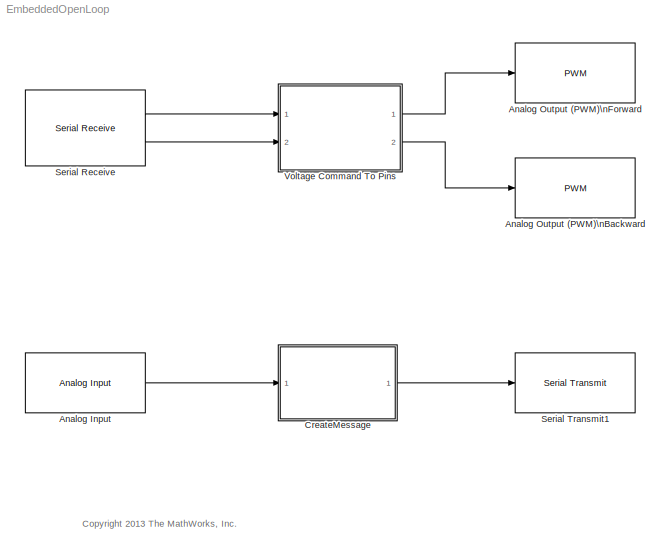
MODEL EmbeddedOpenLoop
KIND model
BLOCK [Reference] Analog Input  REF=arduinolib/Analog Input
  Ports = [0, 1]
  SID = 1
  SourceBlock = arduinolib/Analog Input
  SourceProductBaseCode = ARDUINO
  SourceProductName = Simulink Support Package for Arduino Hardware
  SourceType = Arduino Analog Input
  pinNumber = 0
  sampleTime = 0.01
BLOCK [Reference] Analog Output (PWM)\nBackward  REF=arduinolib/PWM
  Ports = [1]
  SID = 2
  SourceBlock = arduinolib/PWM
  SourceProductBaseCode = ARDUINO
  SourceProductName = Simulink Support Package for Arduino Hardware
  SourceType = Arduino PWM
  pinNumber = 11
BLOCK [Reference] Analog Output (PWM)\nForward  REF=arduinolib/PWM
  Ports = [1]
  SID = 3
  SourceBlock = arduinolib/PWM
  SourceProductBaseCode = ARDUINO
  SourceProductName = Simulink Support Package for Arduino Hardware
  SourceType = Arduino PWM
  pinNumber = 10
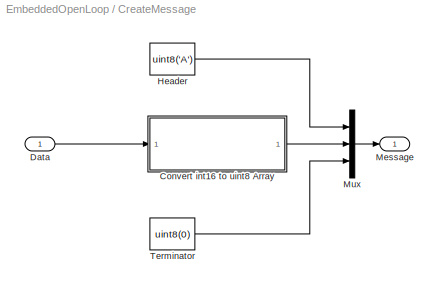
BLOCK [SubSystem] CreateMessage
  Ports = [1, 1]
  RequestExecContextInheritance = off
  SID = 4
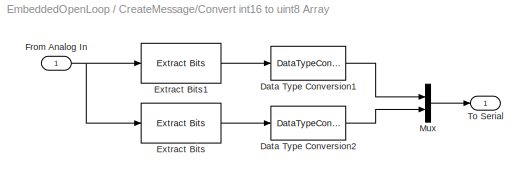
BLOCK [SubSystem] CreateMessage/Convert int16 to uint8 Array
  Ports = [1, 1]
  RequestExecContextInheritance = off
  SID = 6
BLOCK [DataTypeConversion] CreateMessage/Convert int16 to uint8 Array/Data Type Conversion1
  ConvertRealWorld = Stored Integer (SI)
  OutDataTypeStr = uint8
  RndMeth = Floor
  SID = 8
  SaturateOnIntegerOverflow = off
BLOCK [DataTypeConversion] CreateMessage/Convert int16 to uint8 Array/Data Type Conversion2
  ConvertRealWorld = Stored Integer (SI)
  OutDataTypeStr = uint8
  RndMeth = Floor
  SID = 9
  SaturateOnIntegerOverflow = off
BLOCK [Reference] CreateMessage/Convert int16 to uint8 Array/Extract Bits  REF=simulink/Logic and Bit\nOperations/Extract Bits
  Ports = [1, 1]
  SID = 10
  SourceBlock = simulink/Logic and Bit\nOperations/Extract Bits
  SourceProductBaseCode = SL
  SourceProductName = Simulink
  SourceType = Extract Bits
  bitIdxRange = [0 7]
  bitsToExtract = Upper half
  numBits = 8
  outScalingMode = Treat bit field as an integer
BLOCK [Reference] CreateMessage/Convert int16 to uint8 Array/Extract Bits1  REF=simulink/Logic and Bit\nOperations/Extract Bits
  Ports = [1, 1]
  SID = 11
  SourceBlock = simulink/Logic and Bit\nOperations/Extract Bits
  SourceProductBaseCode = SL
  SourceProductName = Simulink
  SourceType = Extract Bits
  bitIdxRange = [0 7]
  bitsToExtract = Lower half
  numBits = 8
  outScalingMode = Treat bit field as an integer
BLOCK [Inport] CreateMessage/Convert int16 to uint8 Array/From Analog In
  IconDisplay = Port number
  SID = 7
BLOCK [Mux] CreateMessage/Convert int16 to uint8 Array/Mux
  DisplayOption = bar
  Inputs = 2
  Ports = [2, 1]
  SID = 12
BLOCK [Outport] CreateMessage/Convert int16 to uint8 Array/To Serial
  IconDisplay = Port number
  SID = 13
BLOCK [Inport] CreateMessage/Data
  IconDisplay = Port number
  SID = 5
BLOCK [Constant] CreateMessage/Header
  SID = 14
  Value = uint8('A')
BLOCK [Outport] CreateMessage/Message
  IconDisplay = Port number
  SID = 17
BLOCK [Mux] CreateMessage/Mux
  DisplayOption = bar
  Inputs = 3
  Ports = [3, 1]
  SID = 15
BLOCK [Constant] CreateMessage/Terminator
  SID = 16
  Value = uint8(0)
BLOCK [Reference] Serial Receive  REF=arduinolib/Serial Receive
  Ports = [0, 2]
  SID = 18
  SourceBlock = arduinolib/Serial Receive
  SourceProductBaseCode = ARDUINO
  SourceProductName = Simulink Support Package for Arduino Hardware
  SourceType = Arduino Serial Receive
  portNumber = 0
  sampleTime = 0.01
  showOutStatus = on
BLOCK [Reference] Serial Transmit1  REF=arduinolib/Serial Transmit
  Ports = [1]
  SID = 19
  SourceBlock = arduinolib/Serial Transmit
  SourceProductBaseCode = ARDUINO
  SourceProductName = Simulink Support Package for Arduino Hardware
  SourceType = Arduino Serial Transmit
  portNumber = 0
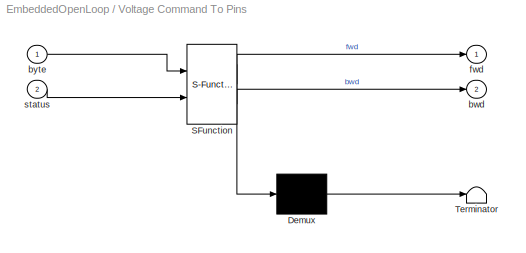
BLOCK [SubSystem] Voltage Command To Pins
  ErrorFcn = Stateflow.Translate.translate
  PermitHierarchicalResolution = ExplicitOnly
  Ports = [2, 2]
  RequestExecContextInheritance = off
  SFBlockType = MATLAB Function
  SID = 20
  TreatAsAtomicUnit = on
BLOCK [Demux] Voltage Command To Pins/ Demux 
  Outputs = 1
  Ports = [1, 1]
  SID = 20::28
BLOCK [S-Function] Voltage Command To Pins/ SFunction 
  EnableBusSupport = off
  FunctionName = sf_sfun
  PortCounts = [2 3]
  Ports = [2, 3]
  SFcnIsStateOwnerBlock = off
  SFunctionDeploymentMode = off
  SID = 20::27
  Tag = Stateflow S-Function 2
BLOCK [Terminator] Voltage Command To Pins/ Terminator 
  SID = 20::29
BLOCK [Outport] Voltage Command To Pins/bwd
  IconDisplay = Port number
  Port = 2
  SID = 20::10
BLOCK [Inport] Voltage Command To Pins/byte
  IconDisplay = Port number
  SID = 20::1
BLOCK [Outport] Voltage Command To Pins/fwd
  IconDisplay = Port number
  SID = 20::5
BLOCK [Inport] Voltage Command To Pins/status
  IconDisplay = Port number
  Port = 2
  SID = 20::23
ANNOTATION (root): <copyright redacted>\n
LINE Analog Input:1 -> CreateMessage:1
LINE CreateMessage/Convert int16 to uint8 Array/Data Type Conversion1:1 -> CreateMessage/Convert int16 to uint8 Array/Mux:1
LINE CreateMessage/Convert int16 to uint8 Array/Data Type Conversion2:1 -> CreateMessage/Convert int16 to uint8 Array/Mux:2
LINE CreateMessage/Convert int16 to uint8 Array/Extract Bits1:1 -> CreateMessage/Convert int16 to uint8 Array/Data Type Conversion1:1
LINE CreateMessage/Convert int16 to uint8 Array/Extract Bits:1 -> CreateMessage/Convert int16 to uint8 Array/Data Type Conversion2:1
NET CreateMessage/Convert int16 to uint8 Array/From Analog In:1 -> CreateMessage/Convert int16 to uint8 Array/Extract Bits1:1, CreateMessage/Convert int16 to uint8 Array/Extract Bits:1
LINE CreateMessage/Convert int16 to uint8 Array/Mux:1 -> CreateMessage/Convert int16 to uint8 Array/To Serial:1
LINE CreateMessage/Convert int16 to uint8 Array:1 -> CreateMessage/Mux:2
LINE CreateMessage/Data:1 -> CreateMessage/Convert int16 to uint8 Array:1
LINE CreateMessage/Header:1 -> CreateMessage/Mux:1
LINE CreateMessage/Mux:1 -> CreateMessage/Message:1
LINE CreateMessage/Terminator:1 -> CreateMessage/Mux:3
LINE CreateMessage:1 -> Serial Transmit1:1
LINE Serial Receive:1 -> Voltage Command To Pins:1
LINE Serial Receive:2 -> Voltage Command To Pins:2
LINE Voltage Command To Pins/ Demux :1 -> Voltage Command To Pins/ Terminator :1
LINE Voltage Command To Pins/ SFunction :1 -> Voltage Command To Pins/ Demux :1
LINE Voltage Command To Pins/ SFunction :2 -> Voltage Command To Pins/fwd:1
LINE Voltage Command To Pins/ SFunction :3 -> Voltage Command To Pins/bwd:1
LINE Voltage Command To Pins/byte:1 -> Voltage Command To Pins/ SFunction :1
LINE Voltage Command To Pins/status:1 -> Voltage Command To Pins/ SFunction :2
LINE Voltage Command To Pins:1 -> Analog Output (PWM)\nForward:1
LINE Voltage Command To Pins:2 -> Analog Output (PWM)\nBackward:1
note: NET lines group one-source signal fan-out (src -> all destinations, sorted); 1:1 wires keep LINE
CHART Voltage Command To Pins states=1 transitions=1
  STATE_LABEL 'eML_blk_kernel()'
